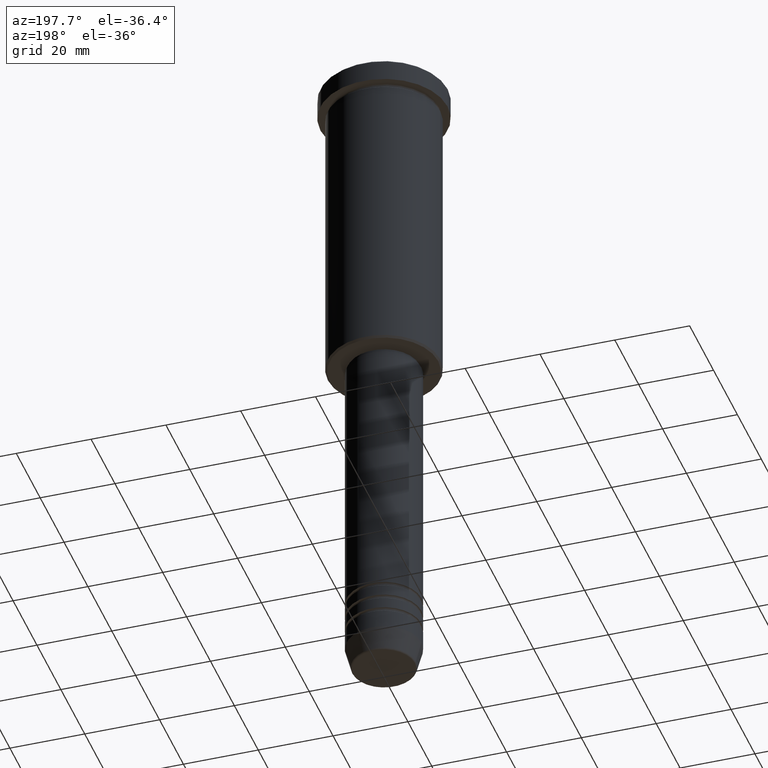
[diagram: clean part render]
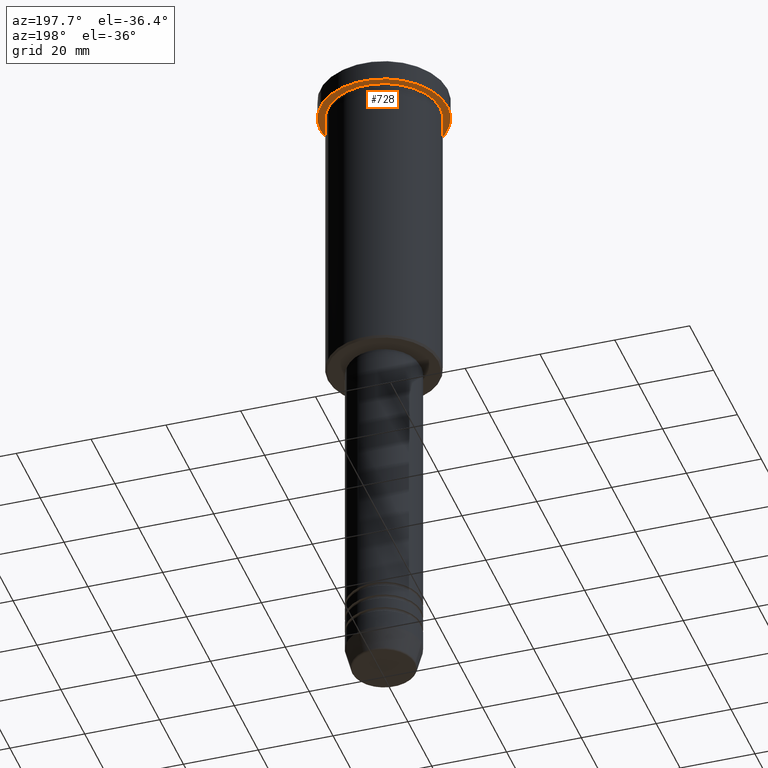
[diagram: same view with one face highlighted and labeled with its STEP entity id]
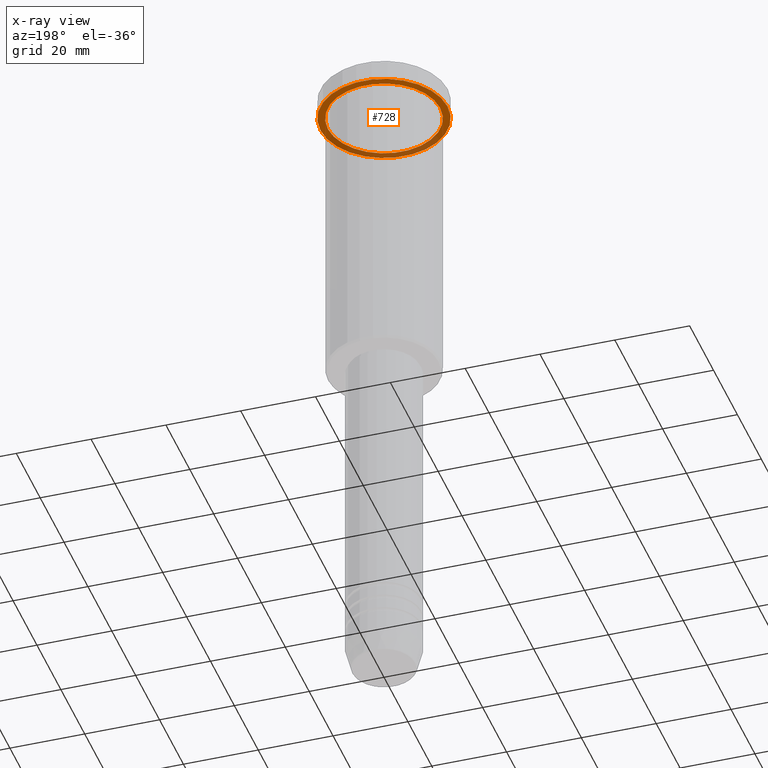
[diagram: x-ray of the same camera — body ghosted, the highlighted face saturated]
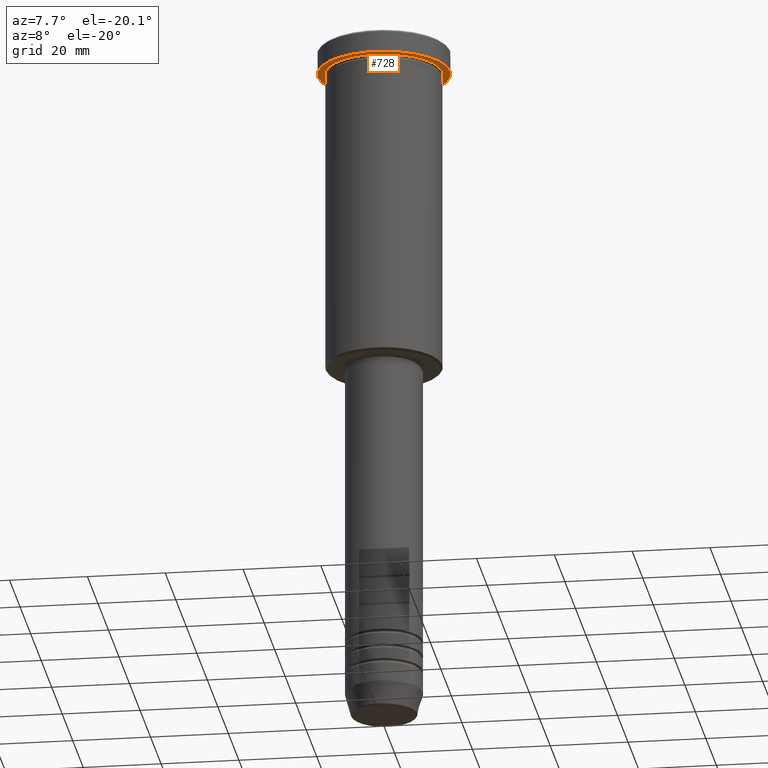
[diagram: same view with one face highlighted and labeled with its STEP entity id]
A machine part, auxiliary view. The second image highlights one B-rep face of the part: STEP entity #728.
The next image is the same camera in x-ray: the body ghosted, the highlighted face saturated — about 33% of this face is hidden behind the body in this view.
A second angle (auxiliary view) of the same face is appended — the face is thin or edge-on in the first view.
In plain terms, the highlighted planar face has unit normal (0, 0, -1).
Its self-contained STEP definition (entity closure, byte-faithful):
#2 = EDGE_CURVE ( 'NONE', #744, #594, #555, .T. ) ;
#8 = CARTESIAN_POINT ( 'NONE',  ( 15.00000000000000000, 1.836970198721029589E-15, -5.999999999999994671 ) ) ;
#54 = DIRECTION ( 'NONE',  ( 1.000000000000000000, 0.000000000000000000, 0.000000000000000000 ) ) ;
#57 = CIRCLE ( 'NONE', #957, 17.00000000000000000 ) ;
#69 = EDGE_LOOP ( 'NONE', ( #511, #814 ) ) ;
#81 = CARTESIAN_POINT ( 'NONE',  ( 0.000000000000000000, 0.000000000000000000, -5.999999999999994671 ) ) ;
#105 = CARTESIAN_POINT ( 'NONE',  ( 0.000000000000000000, 17.00000000000000000, -5.999999999999994671 ) ) ;
#148 = CARTESIAN_POINT ( 'NONE',  ( -15.00000000000000000, 0.000000000000000000, -5.999999999999994671 ) ) ;
#166 = DIRECTION ( 'NONE',  ( -0.000000000000000000, -0.000000000000000000, 1.000000000000000000 ) ) ;
#197 = DIRECTION ( 'NONE',  ( 1.000000000000000000, 0.000000000000000000, 0.000000000000000000 ) ) ;
#223 = VERTEX_POINT ( 'NONE', #504 ) ;
#240 = VERTEX_POINT ( 'NONE', #330 ) ;
#258 = EDGE_CURVE ( 'NONE', #594, #744, #1052, .T. ) ;
#270 = DIRECTION ( 'NONE',  ( 0.000000000000000000, 0.000000000000000000, -1.000000000000000000 ) ) ;
#326 = DIRECTION ( 'NONE',  ( -0.000000000000000000, -0.000000000000000000, 1.000000000000000000 ) ) ;
#330 = CARTESIAN_POINT ( 'NONE',  ( 17.00000000000000000, 0.000000000000000000, -5.999999999999994671 ) ) ;
#332 = EDGE_CURVE ( 'NONE', #223, #240, #57, .T. ) ;
#422 = AXIS2_PLACEMENT_3D ( 'NONE', #81, #326, #679 ) ;
#424 = ORIENTED_EDGE ( 'NONE', *, *, #2, .T. ) ;
#471 = DIRECTION ( 'NONE',  ( -0.000000000000000000, -0.000000000000000000, 1.000000000000000000 ) ) ;
#504 = CARTESIAN_POINT ( 'NONE',  ( -17.00000000000000000, 2.081899558550500280E-15, -5.999999999999994671 ) ) ;
#511 = ORIENTED_EDGE ( 'NONE', *, *, #666, .F. ) ;
#555 = CIRCLE ( 'NONE', #570, 15.00000000000000000 ) ;
#570 = AXIS2_PLACEMENT_3D ( 'NONE', #980, #166, #989 ) ;
#594 = VERTEX_POINT ( 'NONE', #148 ) ;
#651 = DIRECTION ( 'NONE',  ( -1.000000000000000000, 0.000000000000000000, -0.000000000000000000 ) ) ;
#666 = EDGE_CURVE ( 'NONE', #240, #223, #1107, .T. ) ;
#679 = DIRECTION ( 'NONE',  ( -1.000000000000000000, 0.000000000000000000, 0.000000000000000000 ) ) ;
#716 = FACE_OUTER_BOUND ( 'NONE', #69, .T. ) ;
#719 = CARTESIAN_POINT ( 'NONE',  ( 0.000000000000000000, 0.000000000000000000, -5.999999999999994671 ) ) ;
#728 = ADVANCED_FACE ( 'NONE', ( #731, #716 ), #807, .T. ) ;
#731 = FACE_BOUND ( 'NONE', #1143, .T. ) ;
#744 = VERTEX_POINT ( 'NONE', #8 ) ;
#807 = PLANE ( 'NONE',  #1182 ) ;
#814 = ORIENTED_EDGE ( 'NONE', *, *, #332, .F. ) ;
#845 = AXIS2_PLACEMENT_3D ( 'NONE', #1157, #1076, #54 ) ;
#957 = AXIS2_PLACEMENT_3D ( 'NONE', #719, #471, #197 ) ;
#980 = CARTESIAN_POINT ( 'NONE',  ( 0.000000000000000000, 0.000000000000000000, -5.999999999999994671 ) ) ;
#989 = DIRECTION ( 'NONE',  ( -1.000000000000000000, 0.000000000000000000, 0.000000000000000000 ) ) ;
#1046 = ORIENTED_EDGE ( 'NONE', *, *, #258, .T. ) ;
#1052 = CIRCLE ( 'NONE', #422, 15.00000000000000000 ) ;
#1076 = DIRECTION ( 'NONE',  ( -0.000000000000000000, -0.000000000000000000, 1.000000000000000000 ) ) ;
#1107 = CIRCLE ( 'NONE', #845, 17.00000000000000000 ) ;
#1143 = EDGE_LOOP ( 'NONE', ( #1046, #424 ) ) ;
#1157 = CARTESIAN_POINT ( 'NONE',  ( 0.000000000000000000, 0.000000000000000000, -5.999999999999994671 ) ) ;
#1182 = AXIS2_PLACEMENT_3D ( 'NONE', #105, #270, #651 ) ;